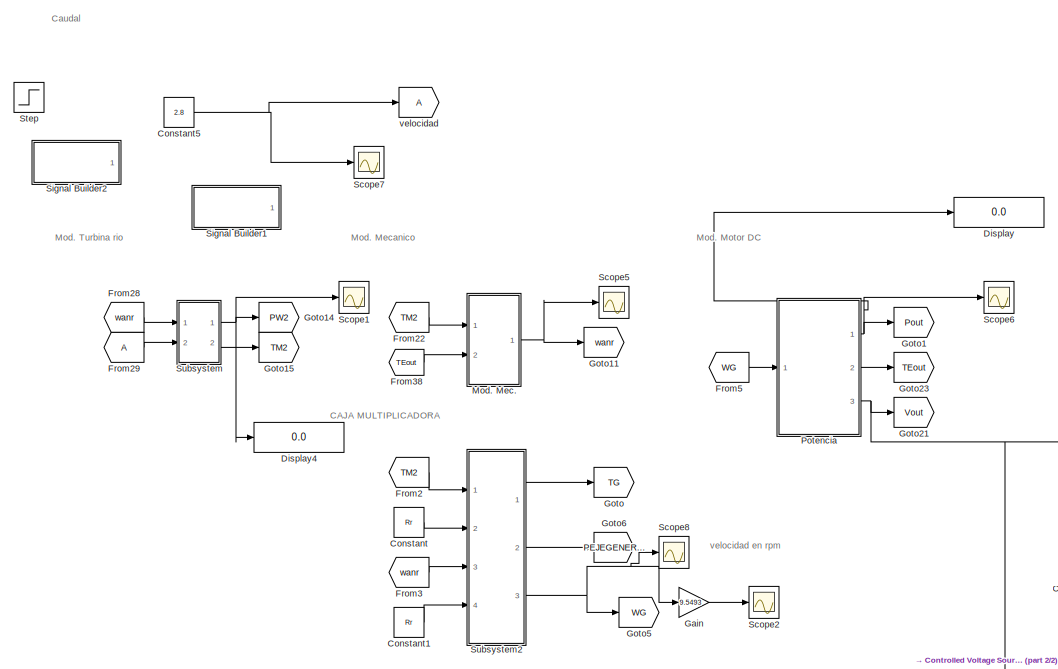
[diagram: root canvas - part 1/2, left side, full height]
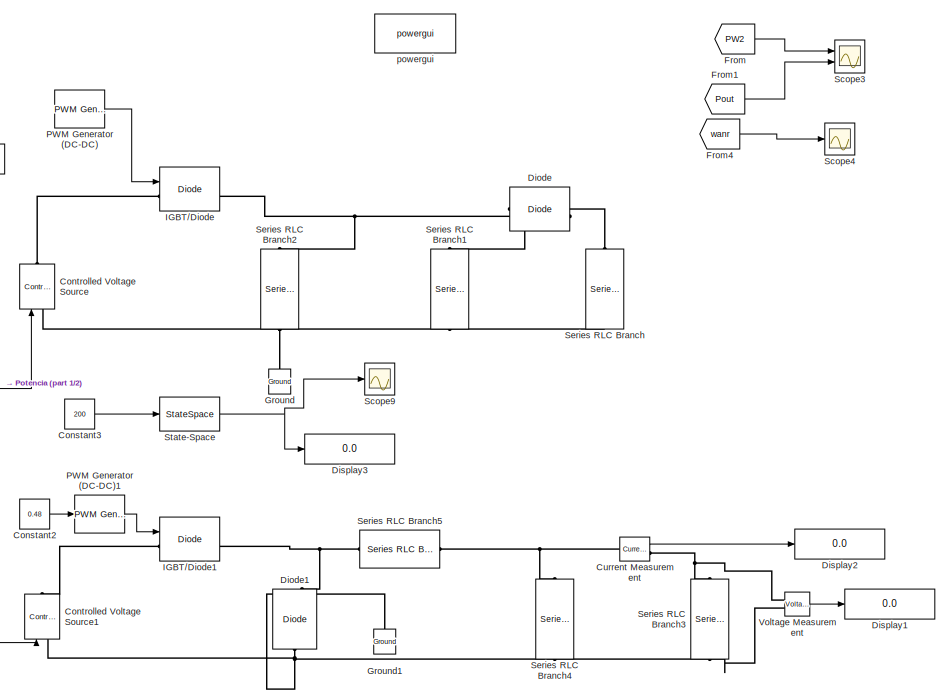
[diagram: root canvas - part 2/2, right side, full height]
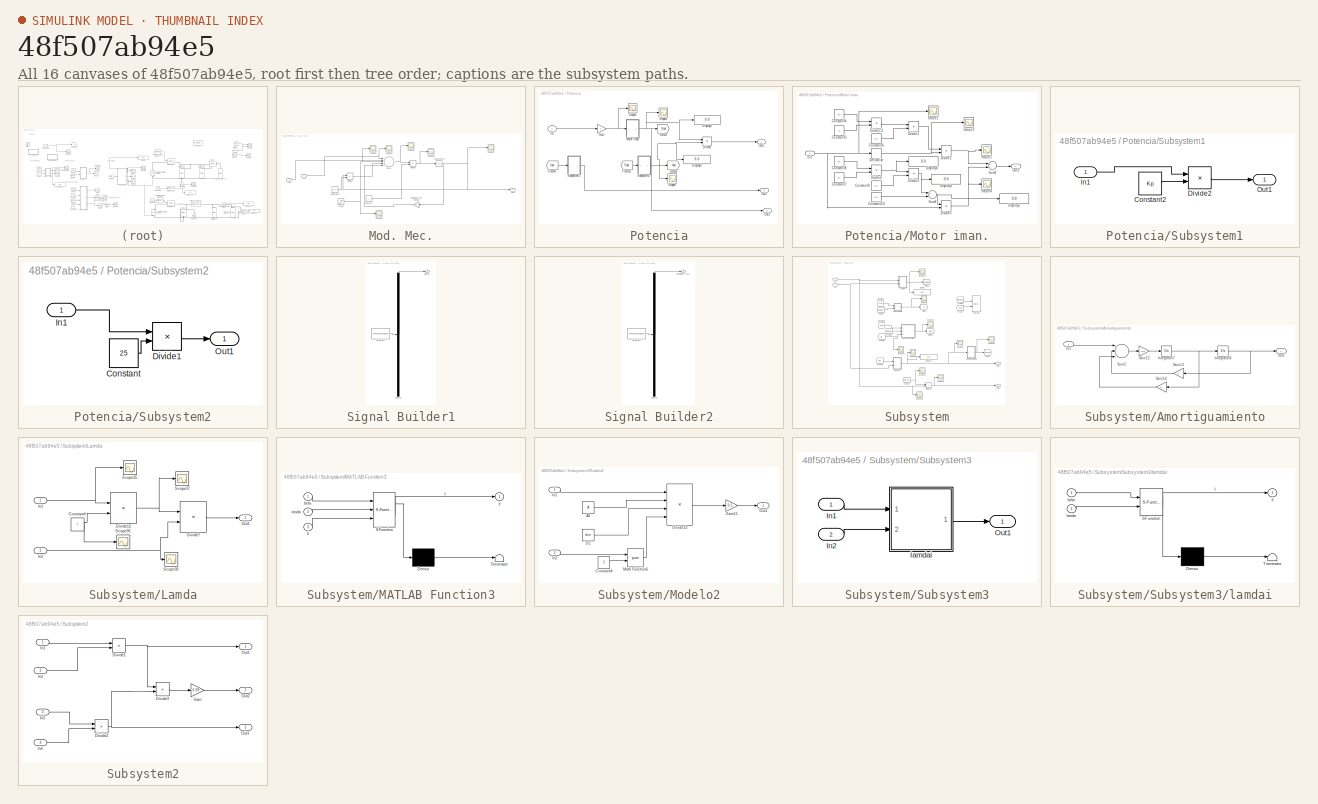
[diagram: thumbnail index - all 16 canvases of the model, root first then tree order]
MODEL slx_48f507ab94e5
KIND model
CONFIG AbsTol = auto
CONFIG EnableMultiTasking = off
CONFIG FixedStep = 50e-3
CONFIG MaxStep = auto
CONFIG MinStep = auto
CONFIG RelTol = 1e-3
CONFIG SampleTimeConstraint = Unconstrained
CONFIG Solver = ode1
CONFIG SolverName = ode1
CONFIG StartTime = 0.0
CONFIG StopTime = 4
BLOCK [Constant] Constant
  Value = Rr
BLOCK [Constant] Constant1
  Value = Rr
BLOCK [Constant] Constant2
  Commented = on
  Value = 0.48
BLOCK [Constant] Constant3
  Commented = on
  Value = 200
BLOCK [Constant] Constant5
  Value = 2.8
BLOCK [Reference] Controlled Voltage Source  REF=powerlib/Electrical
Sources/Controlled Voltage Source
  Commented = on
  Ports = [1, 0, 0, 0, 0, 1, 1]
  SourceBlock = powerlib/Electrical\nSources/Controlled Voltage Source
  SourceProductBaseCode = PS
  SourceProductName = Simscape Power Systems
  SourceType = Controlled Voltage Source
BLOCK [Reference] Controlled Voltage Source1  REF=powerlib/Electrical
Sources/Controlled Voltage Source
  Commented = on
  Ports = [1, 0, 0, 0, 0, 1, 1]
  SourceBlock = powerlib/Electrical\nSources/Controlled Voltage Source
  SourceProductBaseCode = PS
  SourceProductName = Simscape Power Systems
  SourceType = Controlled Voltage Source
BLOCK [Reference] Current Measurement  REF=powerlib/Measurements/Current Measurement
  Commented = on
  Ports = [0, 1, 0, 0, 0, 1, 1]
  SourceBlock = powerlib/Measurements/Current Measurement
  SourceProductBaseCode = PS
  SourceProductName = Simscape Power Systems
  SourceType = Current Measurement
  UserDataPersistent = on
BLOCK [Reference] Diode  REF=powerlib/Power
Electronics/Diode
  Commented = on
  Ports = [0, 1, 0, 0, 0, 1, 1]
  SourceBlock = powerlib/Power\nElectronics/Diode
  SourceProductBaseCode = PS
  SourceProductName = Simscape Power Systems
  SourceType = Diode
BLOCK [Reference] Diode1  REF=powerlib/Power
Electronics/Diode
  Commented = on
  Ports = [0, 1, 0, 0, 0, 1, 1]
  SourceBlock = powerlib/Power\nElectronics/Diode
  SourceProductBaseCode = PS
  SourceProductName = Simscape Power Systems
  SourceType = Diode
BLOCK [Display] Display
  Decimation = 1
  Ports = [1]
BLOCK [Display] Display1
  Commented = on
  Decimation = 1
  Ports = [1]
BLOCK [Display] Display2
  Commented = on
  Decimation = 1
  Ports = [1]
BLOCK [Display] Display3
  Commented = on
  Decimation = 1
  Ports = [1]
BLOCK [Display] Display4
  Decimation = 1
  Ports = [1]
BLOCK [From] From
  GotoTag = PW2
BLOCK [From] From1
  GotoTag = Pout
BLOCK [From] From2
  GotoTag = TM2
BLOCK [From] From22
  GotoTag = TM2
BLOCK [From] From28
  GotoTag = wanr
BLOCK [From] From29
BLOCK [From] From3
  GotoTag = wanr
BLOCK [From] From38
  GotoTag = TEout
BLOCK [From] From4
  GotoTag = wanr
BLOCK [From] From5
  GotoTag = WG
BLOCK [Gain] Gain
  Gain = 9.5493
  OutDataTypeStr = Inherit: Inherit via internal rule
  ParamDataTypeStr = Inherit: Inherit via internal rule
  SaturateOnIntegerOverflow = off
BLOCK [Goto] Goto
  GotoTag = TG
BLOCK [Goto] Goto1
  GotoTag = Pout
BLOCK [Goto] Goto11
  GotoTag = wanr
BLOCK [Goto] Goto14
  GotoTag = PW2
BLOCK [Goto] Goto15
  GotoTag = TM2
BLOCK [Goto] Goto21
  GotoTag = Vout
BLOCK [Goto] Goto23
  GotoTag = TEout
BLOCK [Goto] Goto5
  GotoTag = WG
BLOCK [Goto] Goto6
  GotoTag = PEJEGENERADOR
BLOCK [Reference] Ground  REF=powerlib/Elements/Ground
  Commented = on
  Ports = [0, 0, 0, 0, 0, 1]
  SourceBlock = powerlib/Elements/Ground
  SourceProductBaseCode = PS
  SourceProductName = Simscape Power Systems
  SourceType = Ground
BLOCK [Reference] Ground1  REF=powerlib/Elements/Ground
  Ports = [0, 0, 0, 0, 0, 1]
  SourceBlock = powerlib/Elements/Ground
  SourceProductBaseCode = PS
  SourceProductName = Simscape Power Systems
  SourceType = Ground
BLOCK [Reference] IGBT//Diode  REF=powerlib/Power
Electronics/IGBT//Diode
  Commented = on
  Ports = [1, 1, 0, 0, 0, 1, 1]
  SourceBlock = powerlib/Power\nElectronics/IGBT//Diode
  SourceProductBaseCode = PS
  SourceProductName = Simscape Power Systems
  SourceType = IGBT/Diode
BLOCK [Reference] IGBT//Diode1  REF=powerlib/Power
Electronics/IGBT//Diode
  Commented = on
  Ports = [1, 1, 0, 0, 0, 1, 1]
  SourceBlock = powerlib/Power\nElectronics/IGBT//Diode
  SourceProductBaseCode = PS
  SourceProductName = Simscape Power Systems
  SourceType = IGBT/Diode
BLOCK [SubSystem] Mod. Mec.
  Ports = [2, 1]
  RequestExecContextInheritance = off
  Variant = off
BLOCK [Constant] Mod. Mec./Constant3
  Value = T_d
BLOCK [Product] Mod. Mec./Divide2
  InputSameDT = off
  Inputs = **
  OutDataTypeStr = Inherit: Inherit via internal rule
  Ports = [2, 1]
  RndMeth = Floor
  SaturateOnIntegerOverflow = off
BLOCK [Product] Mod. Mec./Divide9
  InputSameDT = off
  Inputs = */
  OutDataTypeStr = Inherit: Inherit via internal rule
  Ports = [2, 1]
  RndMeth = Floor
  SaturateOnIntegerOverflow = off
BLOCK [Inport] Mod. Mec./In1
  IconDisplay = Port number
BLOCK [Inport] Mod. Mec./In2
  IconDisplay = Port number
  Port = 2
BLOCK [Integrator] Mod. Mec./Integrator6
  InitialCondition = 10
  Ports = [1, 1]
BLOCK [Gain] Mod. Mec./Oeficiente de friccion
  Gain = B
  OutDataTypeStr = Inherit: Inherit via internal rule
  ParamDataTypeStr = Inherit: Inherit via internal rule
  SaturateOnIntegerOverflow = off
BLOCK [Outport] Mod. Mec./Out1
  IconDisplay = Port number
BLOCK [Scope] Mod. Mec./Scope2
  NumInputPorts = 1
  Ports = [1]
  ScopeSpecificationString = Simulink.scopes.TimeScopeBlockCfg('CurrentConfiguration', extmgr.ConfigurationSet(extmgr.Configuration('Core','General UI',true),extmgr.Configuration('Core','Source UI',true),extmgr.Configuration('Sources','WiredSimulink',true,'DataLoggingVariableName','ScopeData3'),extmgr.Configuration('Visuals','Time Domain',true,'SerializedDisplays',{struct('MinYLimReal','0.16062','MaxYLimReal','5.41215','YLabe...<+1385ch>
BLOCK [Scope] Mod. Mec./Scope27
  NumInputPorts = 1
  Ports = [1]
  ScopeSpecificationString = Simulink.scopes.TimeScopeBlockCfg('CurrentConfiguration', extmgr.ConfigurationSet(extmgr.Configuration('Core','General UI',true,'FigureColor',[1 1 1]),extmgr.Configuration('Core','Source UI',true),extmgr.Configuration('Sources','WiredSimulink',true,'DataLoggingVariableName','ScopeData11'),extmgr.Configuration('Visuals','Time Domain',true,'SerializedDisplays',{struct('MinYLimReal','2.92579','MaxYLi...<+1567ch>
BLOCK [Scope] Mod. Mec./Scope28
  NumInputPorts = 1
  Ports = [1]
  ScopeSpecificationString = Simulink.scopes.TimeScopeBlockCfg('CurrentConfiguration', extmgr.ConfigurationSet(extmgr.Configuration('Core','General UI',true),extmgr.Configuration('Core','Source UI',true),extmgr.Configuration('Sources','WiredSimulink',true,'DataLoggingVariableName','ScopeData12'),extmgr.Configuration('Visuals','Time Domain',true,'SerializedDisplays',{struct('MinYLimReal','-4.64221','MaxYLimReal','51.65828','YL...<+1393ch>
BLOCK [Scope] Mod. Mec./Scope29
  NumInputPorts = 1
  Ports = [1]
  ScopeSpecificationString = Simulink.scopes.TimeScopeBlockCfg('CurrentConfiguration', extmgr.ConfigurationSet(extmgr.Configuration('Core','General UI',true),extmgr.Configuration('Core','Source UI',true),extmgr.Configuration('Sources','WiredSimulink',true,'DataLoggingVariableName','ScopeData13'),extmgr.Configuration('Visuals','Time Domain',true,'SerializedDisplays',{struct('MinYLimReal','-29.27017','MaxYLimReal','66.19135','Y...<+1423ch>
BLOCK [Scope] Mod. Mec./Scope30
  NumInputPorts = 1
  Ports = [1]
  ScopeSpecificationString = Simulink.scopes.TimeScopeBlockCfg('CurrentConfiguration', extmgr.ConfigurationSet(extmgr.Configuration('Core','General UI',true),extmgr.Configuration('Core','Source UI',true),extmgr.Configuration('Sources','WiredSimulink',true,'DataLoggingVariableName','ScopeData14'),extmgr.Configuration('Visuals','Time Domain',true,'SerializedDisplays',{struct('MinYLimReal','-0.09284','MaxYLimReal','1.03317','YLa...<+1392ch>
BLOCK [Scope] Mod. Mec./Scope39
  NumInputPorts = 1
  Ports = [1]
  ScopeSpecificationString = Simulink.scopes.TimeScopeBlockCfg('CurrentConfiguration', extmgr.ConfigurationSet(extmgr.Configuration('Core','General UI',true),extmgr.Configuration('Core','Source UI',true),extmgr.Configuration('Sources','WiredSimulink',true,'DataLoggingVariableName','ScopeData7'),extmgr.Configuration('Visuals','Time Domain',true,'SerializedDisplays',{struct('MinYLimReal','-0.625','MaxYLimReal','5.625','YLabelRe...<+1406ch>
BLOCK [Step] Mod. Mec./Step1
  After = 0
  Before = 5
  SampleTime = 0
  Time = 3
BLOCK [Sum] Mod. Mec./Sum4
  InputSameDT = off
  Inputs = |+-+--
  OutDataTypeStr = Inherit: Inherit via internal rule
  Ports = [5, 1]
  SaturateOnIntegerOverflow = off
BLOCK [Constant] Mod. Mec./inercia J
  Value = J
BLOCK [Reference] PWM Generator (DC-DC)  REF=powerlib_meascontrol/Pulse & Signal
Generators/PWM Generator
(DC-DC)
  Commented = on
  Ports = [1, 1]
  SourceBlock = powerlib_meascontrol/Pulse & Signal\nGenerators/PWM Generator\n(DC-DC)
  SourceProductBaseCode = PS
  SourceProductName = Simscape Power Systems
  SourceType = PWM Generator (DC-DC)
BLOCK [Reference] PWM Generator (DC-DC)1  REF=powerlib_meascontrol/Pulse & Signal
Generators/PWM Generator
(DC-DC)
  Commented = on
  Ports = [1, 1]
  SourceBlock = powerlib_meascontrol/Pulse & Signal\nGenerators/PWM Generator\n(DC-DC)
  SourceProductBaseCode = PS
  SourceProductName = Simscape Power Systems
  SourceType = PWM Generator (DC-DC)
BLOCK [SubSystem] Potencia
  Ports = [1, 3]
  RequestExecContextInheritance = off
  Variant = off
BLOCK [Display] Potencia/Display2
  Decimation = 1
  Ports = [1]
BLOCK [Display] Potencia/Display3
  Decimation = 1
  Ports = [1]
BLOCK [Product] Potencia/Divide1
  InputSameDT = off
  Inputs = **
  OutDataTypeStr = Inherit: Inherit via internal rule
  Ports = [2, 1]
  RndMeth = Floor
  SaturateOnIntegerOverflow = off
BLOCK [From] Potencia/From10
  GotoTag = Vout
BLOCK [From] Potencia/From47
  GotoTag = Iout
BLOCK [Gain] Potencia/Gain
  OutDataTypeStr = Inherit: Inherit via internal rule
  ParamDataTypeStr = Inherit: Inherit via internal rule
  SaturateOnIntegerOverflow = off
BLOCK [Goto] Potencia/Goto21
  GotoTag = Vout
BLOCK [Goto] Potencia/Goto22
  GotoTag = Iout
BLOCK [Inport] Potencia/In1
  IconDisplay = Port number
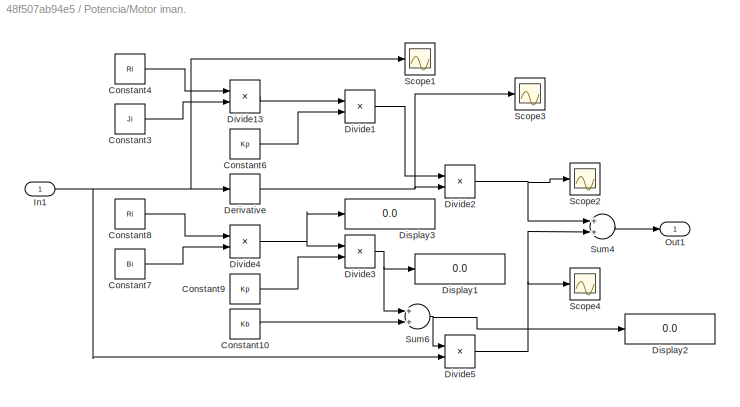
BLOCK [SubSystem] Potencia/Motor iman.
  Ports = [1, 1]
  RequestExecContextInheritance = off
  Variant = off
BLOCK [Constant] Potencia/Motor iman./Constant10
  Value = Kb
BLOCK [Constant] Potencia/Motor iman./Constant3
  Value = Ji
BLOCK [Constant] Potencia/Motor iman./Constant4
  Value = Ri
BLOCK [Constant] Potencia/Motor iman./Constant6
  Value = Kp
BLOCK [Constant] Potencia/Motor iman./Constant7
  Value = Bi
BLOCK [Constant] Potencia/Motor iman./Constant8
  Value = Ri
BLOCK [Constant] Potencia/Motor iman./Constant9
  Value = Kp
BLOCK [Derivative] Potencia/Motor iman./Derivative
BLOCK [Display] Potencia/Motor iman./Display1
  Decimation = 1
  Ports = [1]
BLOCK [Display] Potencia/Motor iman./Display2
  Decimation = 1
  Ports = [1]
BLOCK [Display] Potencia/Motor iman./Display3
  Decimation = 1
  Ports = [1]
BLOCK [Product] Potencia/Motor iman./Divide1
  InputSameDT = off
  Inputs = */
  OutDataTypeStr = Inherit: Inherit via internal rule
  Ports = [2, 1]
BLOCK [Product] Potencia/Motor iman./Divide13
  InputSameDT = off
  Inputs = **
  OutDataTypeStr = Inherit: Inherit via internal rule
  Ports = [2, 1]
BLOCK [Product] Potencia/Motor iman./Divide2
  InputSameDT = off
  Inputs = **
  OutDataTypeStr = Inherit: Inherit via internal rule
  Ports = [2, 1]
BLOCK [Product] Potencia/Motor iman./Divide3
  InputSameDT = off
  Inputs = */
  OutDataTypeStr = Inherit: Inherit via internal rule
  Ports = [2, 1]
BLOCK [Product] Potencia/Motor iman./Divide4
  InputSameDT = off
  Inputs = **
  OutDataTypeStr = Inherit: Inherit via internal rule
  Ports = [2, 1]
BLOCK [Product] Potencia/Motor iman./Divide5
  InputSameDT = off
  Inputs = **
  OutDataTypeStr = Inherit: Inherit via internal rule
  Ports = [2, 1]
BLOCK [Inport] Potencia/Motor iman./In1
  IconDisplay = Port number
BLOCK [Outport] Potencia/Motor iman./Out1
  IconDisplay = Port number
BLOCK [Scope] Potencia/Motor iman./Scope1
  NumInputPorts = 1
  Ports = [1]
  ScopeSpecificationString = Simulink.scopes.TimeScopeBlockCfg('CurrentConfiguration', extmgr.ConfigurationSet(extmgr.Configuration('Core','General UI',true),extmgr.Configuration('Core','Source UI',true),extmgr.Configuration('Sources','WiredSimulink',true,'DataLoggingVariableName','ScopeData5'),extmgr.Configuration('Visuals','Time Domain',true,'SerializedDisplays',{struct('MinYLimReal','6.7756','MaxYLimReal','219.01959','YLab...<+1364ch>
BLOCK [Scope] Potencia/Motor iman./Scope2
  NumInputPorts = 1
  Ports = [1]
  ScopeSpecificationString = Simulink.scopes.TimeScopeBlockCfg('CurrentConfiguration', extmgr.ConfigurationSet(extmgr.Configuration('Core','General UI',true),extmgr.Configuration('Core','Source UI',true),extmgr.Configuration('Sources','WiredSimulink',true,'DataLoggingVariableName','ScopeData1'),extmgr.Configuration('Visuals','Time Domain',true,'SerializedDisplays',{struct('MinYLimReal','-12.35492','MaxYLimReal','26.83381','YL...<+1372ch>
BLOCK [Scope] Potencia/Motor iman./Scope3
  NumInputPorts = 1
  Ports = [1]
  ScopeSpecificationString = Simulink.scopes.TimeScopeBlockCfg('CurrentConfiguration', extmgr.ConfigurationSet(extmgr.Configuration('Core','General UI',true),extmgr.Configuration('Core','Source UI',true),extmgr.Configuration('Sources','WiredSimulink',true,'DataLoggingVariableName','ScopeData4'),extmgr.Configuration('Visuals','Time Domain',true,'SerializedDisplays',{struct('MinYLimReal','-6.08322','MaxYLimReal','13.06326','YLa...<+1373ch>
BLOCK [Scope] Potencia/Motor iman./Scope4
  NumInputPorts = 1
  Ports = [1]
  ScopeSpecificationString = Simulink.scopes.TimeScopeBlockCfg('CurrentConfiguration', extmgr.ConfigurationSet(extmgr.Configuration('Core','General UI',true),extmgr.Configuration('Core','Source UI',true),extmgr.Configuration('Sources','WiredSimulink',true,'DataLoggingVariableName','ScopeData2'),extmgr.Configuration('Visuals','Time Domain',true,'SerializedDisplays',{struct('MinYLimReal','14.52045','MaxYLimReal','469.36993','YL...<+1376ch>
BLOCK [Sum] Potencia/Motor iman./Sum4
  InputSameDT = off
  OutDataTypeStr = Inherit: Inherit via internal rule
  Ports = [2, 1]
  SaturateOnIntegerOverflow = off
BLOCK [Sum] Potencia/Motor iman./Sum6
  InputSameDT = off
  OutDataTypeStr = Inherit: Inherit via internal rule
  Ports = [2, 1]
  SaturateOnIntegerOverflow = off
BLOCK [Outport] Potencia/Out1
  IconDisplay = Port number
BLOCK [Outport] Potencia/Out2
  IconDisplay = Port number
  Port = 2
BLOCK [Outport] Potencia/Out3
  IconDisplay = Port number
  Port = 3
BLOCK [Scope] Potencia/Scope1
  NumInputPorts = 1
  Ports = [1]
  ScopeSpecificationString = Simulink.scopes.TimeScopeBlockCfg('CurrentConfiguration', extmgr.ConfigurationSet(extmgr.Configuration('Core','General UI',true),extmgr.Configuration('Core','Source UI',true),extmgr.Configuration('Sources','WiredSimulink',true,'DataLoggingVariableName','ScopeData1'),extmgr.Configuration('Visuals','Time Domain',true,'SerializedDisplays',{struct('MinYLimReal','0.63338','MaxYLimReal','422.90957','YLa...<+1376ch>
BLOCK [Scope] Potencia/Scope3
  NumInputPorts = 1
  Ports = [1]
  ScopeSpecificationString = Simulink.scopes.TimeScopeBlockCfg('CurrentConfiguration', extmgr.ConfigurationSet(extmgr.Configuration('Core','General UI',true),extmgr.Configuration('Core','Source UI',true),extmgr.Configuration('Sources','WiredSimulink',true,'DataLoggingVariableName','ScopeData2'),extmgr.Configuration('Visuals','Time Domain',true,'SerializedDisplays',{struct('MinYLimReal','5.04136','MaxYLimReal','154.62776','YLa...<+1369ch>
BLOCK [Scope] Potencia/Scope6
  NumInputPorts = 1
  Ports = [1]
  ScopeSpecificationString = Simulink.scopes.TimeScopeBlockCfg('CurrentConfiguration', extmgr.ConfigurationSet(extmgr.Configuration('Core','General UI',true),extmgr.Configuration('Core','Source UI',true),extmgr.Configuration('Sources','WiredSimulink',true,'DataLoggingVariableName','ScopeData2'),extmgr.Configuration('Visuals','Time Domain',true,'SerializedDisplays',{struct('MinYLimReal','0.28611','MaxYLimReal','9.4261','YLabel...<+1363ch>
BLOCK [SubSystem] Potencia/Subsystem1
  Ports = [1, 1]
  RequestExecContextInheritance = off
  Variant = off
BLOCK [Constant] Potencia/Subsystem1/Constant2
  Value = Kp
BLOCK [Product] Potencia/Subsystem1/Divide2
  InputSameDT = off
  Inputs = **
  OutDataTypeStr = Inherit: Inherit via internal rule
  Ports = [2, 1]
  RndMeth = Floor
  SaturateOnIntegerOverflow = off
BLOCK [Inport] Potencia/Subsystem1/In1
  IconDisplay = Port number
BLOCK [Outport] Potencia/Subsystem1/Out1
  IconDisplay = Port number
BLOCK [SubSystem] Potencia/Subsystem2
  Ports = [1, 1]
  RequestExecContextInheritance = off
  Variant = off
BLOCK [Constant] Potencia/Subsystem2/Constant
  Value = 25
BLOCK [Product] Potencia/Subsystem2/Divide1
  InputSameDT = off
  Inputs = */
  OutDataTypeStr = Inherit: Inherit via internal rule
  Ports = [2, 1]
  RndMeth = Floor
  SaturateOnIntegerOverflow = off
BLOCK [Inport] Potencia/Subsystem2/In1
  IconDisplay = Port number
BLOCK [Outport] Potencia/Subsystem2/Out1
  IconDisplay = Port number
BLOCK [Scope] Scope1
  NumInputPorts = 1
  Ports = [1]
  ScopeSpecificationString = Simulink.scopes.TimeScopeBlockCfg('CurrentConfiguration', extmgr.ConfigurationSet(extmgr.Configuration('Core','General UI',true),extmgr.Configuration('Core','Source UI',true),extmgr.Configuration('Sources','WiredSimulink',true,'DataLoggingVariableName','ScopeData4'),extmgr.Configuration('Visuals','Time Domain',true,'SerializedDisplays',{struct('MinYLimReal','-10109.99976','MaxYLimReal','5720.47472...<+1469ch>
BLOCK [Scope] Scope2
  NumInputPorts = 1
  Ports = [1]
  ScopeSpecificationString = Simulink.scopes.TimeScopeBlockCfg('CurrentConfiguration', extmgr.ConfigurationSet(extmgr.Configuration('Core','General UI',true),extmgr.Configuration('Core','Source UI',true),extmgr.Configuration('Sources','WiredSimulink',true,'DataLoggingVariableName','ScopeData1'),extmgr.Configuration('Visuals','Time Domain',true,'SerializedDisplays',{struct('MinYLimReal','56.8602','MaxYLimReal','1398.11817','YL...<+1473ch>
BLOCK [Scope] Scope3
  NumInputPorts = 2
  Ports = [2]
  ScopeSpecificationString = Simulink.scopes.TimeScopeBlockCfg('CurrentConfiguration', extmgr.ConfigurationSet(extmgr.Configuration('Core','General UI',true),extmgr.Configuration('Core','Source UI',true),extmgr.Configuration('Sources','WiredSimulink',true,'DataLoggingVariableName','ScopeData1'),extmgr.Configuration('Visuals','Time Domain',true,'SerializedDisplays',{struct('MinYLimReal','-410.96038','MaxYLimReal','4433.46951',...<+1501ch>
BLOCK [Scope] Scope4
  NumInputPorts = 1
  Ports = [1]
  ScopeSpecificationString = Simulink.scopes.TimeScopeBlockCfg('CurrentConfiguration', extmgr.ConfigurationSet(extmgr.Configuration('Core','General UI',true,'FigureColor',[1 1 1]),extmgr.Configuration('Core','Source UI',true),extmgr.Configuration('Sources','WiredSimulink',true,'DataLoggingVariableName','ScopeData2'),extmgr.Configuration('Visuals','Time Domain',true,'SerializedDisplays',{struct('MinYLimReal','2.35531','MaxYLim...<+1559ch>
BLOCK [Scope] Scope5
  NumInputPorts = 1
  Ports = [1]
  ScopeSpecificationString = Simulink.scopes.TimeScopeBlockCfg('CurrentConfiguration', extmgr.ConfigurationSet(extmgr.Configuration('Core','General UI',true),extmgr.Configuration('Core','Source UI',true),extmgr.Configuration('Sources','WiredSimulink',true,'DataLoggingVariableName','ScopeData5'),extmgr.Configuration('Visuals','Time Domain',true,'SerializedDisplays',{struct('MinYLimReal','2.52068','MaxYLimReal','77.31388','YLab...<+1370ch>
BLOCK [Scope] Scope6
  NumInputPorts = 1
  Ports = [1]
  ScopeSpecificationString = Simulink.scopes.TimeScopeBlockCfg('CurrentConfiguration', extmgr.ConfigurationSet(extmgr.Configuration('Core','General UI',true,'FigureColor',[1 1 1]),extmgr.Configuration('Core','Source UI',true),extmgr.Configuration('Sources','WiredSimulink',true,'DataLoggingVariableName','ScopeData3'),extmgr.Configuration('Visuals','Time Domain',true,'SerializedDisplays',{struct('MinYLimReal','-641.92579','MaxY...<+1578ch>
BLOCK [Scope] Scope7
  NumInputPorts = 1
  Ports = [1]
  ScopeSpecificationString = Simulink.scopes.TimeScopeBlockCfg('CurrentConfiguration', extmgr.ConfigurationSet(extmgr.Configuration('Core','General UI',true,'FigureColor',[1 1 1]),extmgr.Configuration('Core','Source UI',true),extmgr.Configuration('Sources','WiredSimulink',true,'DataLoggingVariableName','ScopeData6'),extmgr.Configuration('Visuals','Time Domain',true,'TimeAxisLabels','All','SerializedDisplays',{struct('MinYLimR...<+1548ch>
BLOCK [Scope] Scope8
  NumInputPorts = 1
  Ports = [1]
  ScopeSpecificationString = Simulink.scopes.TimeScopeBlockCfg('CurrentConfiguration', extmgr.ConfigurationSet(extmgr.Configuration('Core','General UI',true,'FigureColor',[1 1 1]),extmgr.Configuration('Core','Source UI',true),extmgr.Configuration('Sources','WiredSimulink',true,'DataLoggingVariableName','ScopeData7'),extmgr.Configuration('Visuals','Time Domain',true,'SerializedDisplays',{struct('MinYLimReal','4.71062','MaxYLim...<+1537ch>
BLOCK [Scope] Scope9
  Commented = on
  NumInputPorts = 1
  Ports = [1]
  ScopeSpecificationString = Simulink.scopes.TimeScopeBlockCfg('CurrentConfiguration', extmgr.ConfigurationSet(extmgr.Configuration('Core','General UI',true,'FigureColor',[1 1 1]),extmgr.Configuration('Core','Source UI',true),extmgr.Configuration('Sources','WiredSimulink',true,'DataLoggingVariableName','ScopeData1'),extmgr.Configuration('Visuals','Time Domain',true,'SerializedDisplays',{struct('MinYLimReal','-1079182159210319...<+3961ch>
BLOCK [Reference] Series RLC Branch  REF=powerlib/Elements/Series RLC Branch
  Commented = on
  Ports = [0, 0, 0, 0, 0, 1, 1]
  SourceBlock = powerlib/Elements/Series RLC Branch
  SourceProductBaseCode = PS
  SourceProductName = Simscape Power Systems
  SourceType = Series RLC Branch
BLOCK [Reference] Series RLC Branch1  REF=powerlib/Elements/Series RLC Branch
  Commented = on
  Ports = [0, 0, 0, 0, 0, 1, 1]
  SourceBlock = powerlib/Elements/Series RLC Branch
  SourceProductBaseCode = PS
  SourceProductName = Simscape Power Systems
  SourceType = Series RLC Branch
BLOCK [Reference] Series RLC Branch2  REF=powerlib/Elements/Series RLC Branch
  Commented = on
  Ports = [0, 0, 0, 0, 0, 1, 1]
  SourceBlock = powerlib/Elements/Series RLC Branch
  SourceProductBaseCode = PS
  SourceProductName = Simscape Power Systems
  SourceType = Series RLC Branch
BLOCK [Reference] Series RLC Branch3  REF=powerlib/Elements/Series RLC Branch
  Commented = on
  Ports = [0, 0, 0, 0, 0, 1, 1]
  SourceBlock = powerlib/Elements/Series RLC Branch
  SourceProductBaseCode = PS
  SourceProductName = Simscape Power Systems
  SourceType = Series RLC Branch
BLOCK [Reference] Series RLC Branch4  REF=powerlib/Elements/Series RLC Branch
  Commented = on
  Ports = [0, 0, 0, 0, 0, 1, 1]
  SourceBlock = powerlib/Elements/Series RLC Branch
  SourceProductBaseCode = PS
  SourceProductName = Simscape Power Systems
  SourceType = Series RLC Branch
BLOCK [Reference] Series RLC Branch5  REF=powerlib/Elements/Series RLC Branch
  Commented = on
  Ports = [0, 0, 0, 0, 0, 1, 1]
  SourceBlock = powerlib/Elements/Series RLC Branch
  SourceProductBaseCode = PS
  SourceProductName = Simscape Power Systems
  SourceType = Series RLC Branch
BLOCK [SubSystem] Signal Builder1
  ClipboardFcn = sigbuilder_block('clipboard');
  CloseFcn = sigbuilder_block('close');
  ContinueFcn = sigbuilder_block('continue');
  CopyFcn = sigbuilder_block('copy');
  DeleteFcn = sigbuilder_block('delete');
  LoadFcn = sigbuilder_block('load');
  MaskHideContents = on
  ModelCloseFcn = sigbuilder_block('modelClose');
  NameChangeFcn = sigbuilder_block('namechange');
  OpenFcn = sigbuilder_block('open',[211.5 75 550.5 359.25 ]);
  PauseFcn = sigbuilder_block('pause');
  Ports = [0, 1]
  PreSaveFcn = sigbuilder_block('preSave');
  RequestExecContextInheritance = off
  StartFcn = sigbuilder_block('start');
  StopFcn = sigbuilder_block('stop');
  Tag = STV Subsys
  Variant = off
BLOCK [Demux] Signal Builder1/Demux
  Outputs = 1
  Ports = [1, 1]
  Tag = STV Demux
BLOCK [FromWorkspace] Signal Builder1/FromWs
  SampleTime = 0
  Tag = STV FromWs
  VariableName = tuvar
  ZeroCross = on
BLOCK [Outport] Signal Builder1/Signal 1
  IconDisplay = Port number
  Tag = STV Outport
BLOCK [SubSystem] Signal Builder2
  ClipboardFcn = sigbuilder_block('clipboard');
  CloseFcn = sigbuilder_block('close');
  ContinueFcn = sigbuilder_block('continue');
  CopyFcn = sigbuilder_block('copy');
  DeleteFcn = sigbuilder_block('delete');
  LoadFcn = sigbuilder_block('load');
  MaskHideContents = on
  ModelCloseFcn = sigbuilder_block('modelClose');
  NameChangeFcn = sigbuilder_block('namechange');
  OpenFcn = sigbuilder_block('open',[197.25 66 550.5 359.25 ]);
  PauseFcn = sigbuilder_block('pause');
  Ports = [0, 1]
  PreSaveFcn = sigbuilder_block('preSave');
  RequestExecContextInheritance = off
  StartFcn = sigbuilder_block('start');
  StopFcn = sigbuilder_block('stop');
  Tag = STV Subsys
  Variant = off
BLOCK [Demux] Signal Builder2/Demux
  Outputs = 1
  Ports = [1, 1]
  Tag = STV Demux
BLOCK [FromWorkspace] Signal Builder2/FromWs
  SampleTime = 0
  Tag = STV FromWs
  VariableName = tuvar
  ZeroCross = on
BLOCK [Outport] Signal Builder2/Velocidad (m//s)
  IconDisplay = Port number
  Tag = STV Outport
BLOCK [StateSpace] State-Space
  A = [0 (-1/LDC);(1/CDC) -(1/(RDC*CDC))]
  B = [(DDC/LDC);0]
  C = [0 1]
  Commented = through
  D = 0
  Ports = [1, 1]
  X0 = 0
BLOCK [Step] Step
  After = 2.888
  Before = 2.5
  SampleTime = 0
  Time = 10
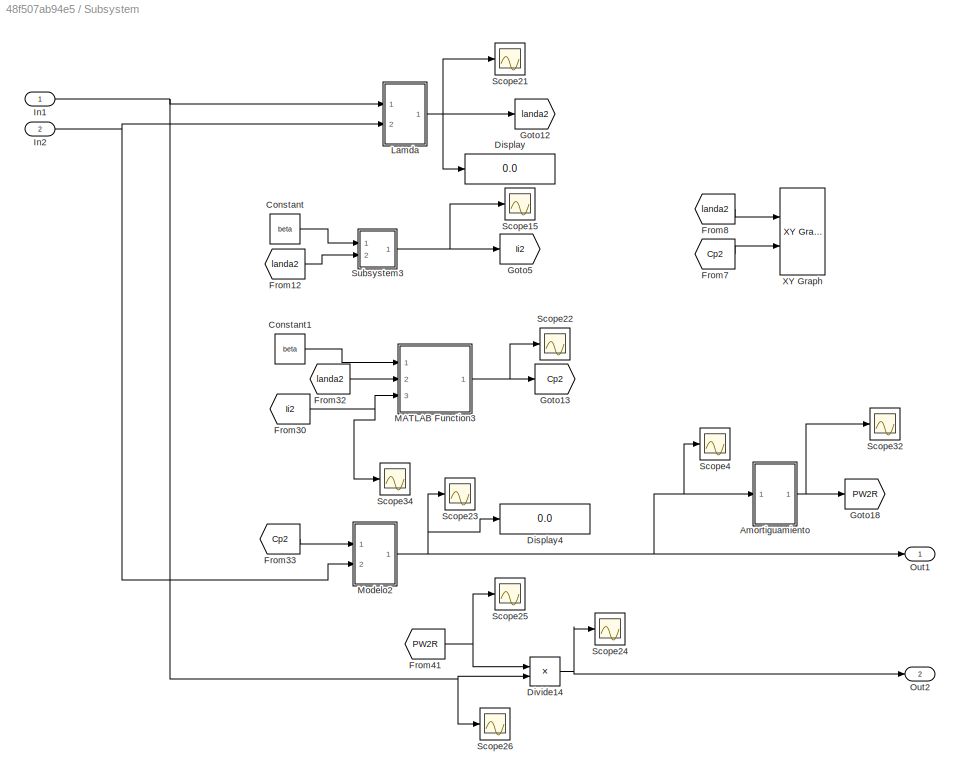
BLOCK [SubSystem] Subsystem
  Ports = [2, 2]
  RequestExecContextInheritance = off
  Variant = off
BLOCK [SubSystem] Subsystem/Amortiguamiento
  Ports = [1, 1]
  RequestExecContextInheritance = off
  Variant = off
BLOCK [Gain] Subsystem/Amortiguamiento/Gain12
  Gain = 1/m
  OutDataTypeStr = Inherit: Inherit via internal rule
  ParamDataTypeStr = Inherit: Inherit via internal rule
  SaturateOnIntegerOverflow = off
BLOCK [Gain] Subsystem/Amortiguamiento/Gain13
  Gain = k
  OutDataTypeStr = Inherit: Inherit via internal rule
  ParamDataTypeStr = Inherit: Inherit via internal rule
  SaturateOnIntegerOverflow = off
BLOCK [Gain] Subsystem/Amortiguamiento/Gain14
  Gain = z
  OutDataTypeStr = Inherit: Inherit via internal rule
  ParamDataTypeStr = Inherit: Inherit via internal rule
  SaturateOnIntegerOverflow = off
BLOCK [Inport] Subsystem/Amortiguamiento/In1
  IconDisplay = Port number
BLOCK [Integrator] Subsystem/Amortiguamiento/Integrator7
  Ports = [1, 1]
BLOCK [Integrator] Subsystem/Amortiguamiento/Integrator8
  Ports = [1, 1]
BLOCK [Outport] Subsystem/Amortiguamiento/Out1
  IconDisplay = Port number
BLOCK [Sum] Subsystem/Amortiguamiento/Sum5
  InputSameDT = off
  Inputs = +--
  OutDataTypeStr = Inherit: Inherit via internal rule
  Ports = [3, 1]
  SaturateOnIntegerOverflow = off
BLOCK [Constant] Subsystem/Constant
  Value = beta
BLOCK [Constant] Subsystem/Constant1
  Value = beta
BLOCK [Display] Subsystem/Display
  Decimation = 1
  Ports = [1]
BLOCK [Display] Subsystem/Display4
  Decimation = 1
  Ports = [1]
BLOCK [Product] Subsystem/Divide14
  InputSameDT = off
  Inputs = */
  OutDataTypeStr = Inherit: Inherit via internal rule
  Ports = [2, 1]
  RndMeth = Floor
  SaturateOnIntegerOverflow = off
BLOCK [From] Subsystem/From12
  GotoTag = landa2
BLOCK [From] Subsystem/From30
  GotoTag = Ii2
BLOCK [From] Subsystem/From32
  GotoTag = landa2
BLOCK [From] Subsystem/From33
  GotoTag = Cp2
BLOCK [From] Subsystem/From41
  GotoTag = PW2R
BLOCK [From] Subsystem/From7
  GotoTag = Cp2
BLOCK [From] Subsystem/From8
  GotoTag = landa2
BLOCK [Goto] Subsystem/Goto12
  GotoTag = landa2
BLOCK [Goto] Subsystem/Goto13
  GotoTag = Cp2
BLOCK [Goto] Subsystem/Goto18
  GotoTag = PW2R
BLOCK [Goto] Subsystem/Goto5
  GotoTag = Ii2
BLOCK [Inport] Subsystem/In1
  IconDisplay = Port number
BLOCK [Inport] Subsystem/In2
  IconDisplay = Port number
  Port = 2
BLOCK [SubSystem] Subsystem/Lamda
  Ports = [2, 1]
  RequestExecContextInheritance = off
  Variant = off
BLOCK [Constant] Subsystem/Lamda/Constant4
  Value = r
BLOCK [Product] Subsystem/Lamda/Divide12
  InputSameDT = off
  Inputs = **
  OutDataTypeStr = Inherit: Inherit via internal rule
  Ports = [2, 1]
  RndMeth = Floor
  SaturateOnIntegerOverflow = off
BLOCK [Product] Subsystem/Lamda/Divide7
  InputSameDT = off
  Inputs = */
  OutDataTypeStr = Inherit: Inherit via internal rule
  Ports = [2, 1]
  RndMeth = Floor
  SaturateOnIntegerOverflow = off
BLOCK [Inport] Subsystem/Lamda/In1
  IconDisplay = Port number
BLOCK [Inport] Subsystem/Lamda/In2
  IconDisplay = Port number
  Port = 2
BLOCK [Outport] Subsystem/Lamda/Out1
  IconDisplay = Port number
BLOCK [Scope] Subsystem/Lamda/Scope35
  NumInputPorts = 1
  Ports = [1]
  ScopeSpecificationString = Simulink.scopes.TimeScopeBlockCfg('CurrentConfiguration', extmgr.ConfigurationSet(extmgr.Configuration('Core','General UI',true),extmgr.Configuration('Core','Source UI',true),extmgr.Configuration('Sources','WiredSimulink',true,'DataLoggingVariableName','ScopeData3'),extmgr.Configuration('Visuals','Time Domain',true,'SerializedDisplays',{struct('MinYLimReal','5.6875','MaxYLimReal','48.8125','YLabel...<+1643ch>
BLOCK [Scope] Subsystem/Lamda/Scope36
  NumInputPorts = 1
  Ports = [1]
  ScopeSpecificationString = Simulink.scopes.TimeScopeBlockCfg('CurrentConfiguration', extmgr.ConfigurationSet(extmgr.Configuration('Core','General UI',true),extmgr.Configuration('Core','Source UI',true),extmgr.Configuration('Sources','WiredSimulink',true,'DataLoggingVariableName','ScopeData4'),extmgr.Configuration('Visuals','Time Domain',true,'SerializedDisplays',{struct('MinYLimReal','0.4','MaxYLimReal','0.6','YLabelReal','...<+1363ch>
BLOCK [Scope] Subsystem/Lamda/Scope37
  NumInputPorts = 1
  Ports = [1]
  ScopeSpecificationString = Simulink.scopes.TimeScopeBlockCfg('CurrentConfiguration', extmgr.ConfigurationSet(extmgr.Configuration('Core','General UI',true),extmgr.Configuration('Core','Source UI',true),extmgr.Configuration('Sources','WiredSimulink',true,'DataLoggingVariableName','ScopeData5'),extmgr.Configuration('Visuals','Time Domain',true,'SerializedDisplays',{struct('MinYLimReal','2.60111','MaxYLimReal','26.59001','YLab...<+1394ch>
BLOCK [Scope] Subsystem/Lamda/Scope38
  NumInputPorts = 1
  Ports = [1]
  ScopeSpecificationString = Simulink.scopes.TimeScopeBlockCfg('CurrentConfiguration', extmgr.ConfigurationSet(extmgr.Configuration('Core','General UI',true),extmgr.Configuration('Core','Source UI',true),extmgr.Configuration('Sources','WiredSimulink',true,'DataLoggingVariableName','ScopeData6'),extmgr.Configuration('Visuals','Time Domain',true,'SerializedDisplays',{struct('MinYLimReal','1.9','MaxYLimReal','2.9','YLabelReal','...<+1328ch>
BLOCK [SubSystem] Subsystem/MATLAB Function3
  ErrorFcn = Stateflow.Translate.translate
  PermitHierarchicalResolution = ExplicitOnly
  Ports = [3, 1]
  RequestExecContextInheritance = off
  SFBlockType = MATLAB Function
  TreatAsAtomicUnit = on
  Variant = off
BLOCK [Demux] Subsystem/MATLAB Function3/ Demux 
  Outputs = 1
  Ports = [1, 1]
BLOCK [S-Function] Subsystem/MATLAB Function3/ SFunction 
  EnableBusSupport = on
  FunctionName = sf_sfun
  PortCounts = [3 2]
  Ports = [3, 2]
  SFcnIsStateOwnerBlock = off
  SFunctionDeploymentMode = off
  Tag = Stateflow S-Function MODELODETURBINADERIOV4 2
BLOCK [Terminator] Subsystem/MATLAB Function3/ Terminator 
BLOCK [Inport] Subsystem/MATLAB Function3/Ii
  IconDisplay = Port number
  Port = 3
BLOCK [Inport] Subsystem/MATLAB Function3/beta
  IconDisplay = Port number
BLOCK [Inport] Subsystem/MATLAB Function3/landa
  IconDisplay = Port number
  Port = 2
BLOCK [Outport] Subsystem/MATLAB Function3/y
  IconDisplay = Port number
BLOCK [SubSystem] Subsystem/Modelo2
  Ports = [2, 1]
  RequestExecContextInheritance = off
  Variant = off
BLOCK [Constant] Subsystem/Modelo2/A1
  Value = A
BLOCK [Constant] Subsystem/Modelo2/Constant4
  Value = 3
BLOCK [Constant] Subsystem/Modelo2/D1
  Value = den
BLOCK [Product] Subsystem/Modelo2/Divide13
  InputSameDT = off
  Inputs = ****
  OutDataTypeStr = Inherit: Inherit via internal rule
  Ports = [4, 1]
BLOCK [Gain] Subsystem/Modelo2/Gain11
  Gain = 0.5
  OutDataTypeStr = Inherit: Inherit via internal rule
  ParamDataTypeStr = Inherit: Inherit via internal rule
  SaturateOnIntegerOverflow = off
BLOCK [Inport] Subsystem/Modelo2/In1
  IconDisplay = Port number
BLOCK [Inport] Subsystem/Modelo2/In2
  IconDisplay = Port number
  Port = 2
BLOCK [Math] Subsystem/Modelo2/Math Function6
  Operator = pow
  Ports = [2, 1]
BLOCK [Outport] Subsystem/Modelo2/Out1
  IconDisplay = Port number
BLOCK [Outport] Subsystem/Out1
  IconDisplay = Port number
BLOCK [Outport] Subsystem/Out2
  IconDisplay = Port number
  Port = 2
BLOCK [Scope] Subsystem/Scope15
  NumInputPorts = 1
  Ports = [1]
  ScopeSpecificationString = Simulink.scopes.TimeScopeBlockCfg('CurrentConfiguration', extmgr.ConfigurationSet(extmgr.Configuration('Core','General UI',true),extmgr.Configuration('Core','Source UI',true),extmgr.Configuration('Sources','WiredSimulink',true,'DataLoggingVariableName','ScopeData2'),extmgr.Configuration('Visuals','Time Domain',true,'SerializedDisplays',{struct('MinYLimReal','-0.62327','MaxYLimReal','24.65706','YLa...<+1402ch>
BLOCK [Scope] Subsystem/Scope21
  NumInputPorts = 1
  Ports = [1]
  ScopeSpecificationString = Simulink.scopes.TimeScopeBlockCfg('CurrentConfiguration', extmgr.ConfigurationSet(extmgr.Configuration('Core','General UI',true),extmgr.Configuration('Core','Source UI',true),extmgr.Configuration('Sources','WiredSimulink',true,'DataLoggingVariableName','ScopeData5'),extmgr.Configuration('Visuals','Time Domain',true,'SerializedDisplays',{struct('MinYLimReal','-0.41206','MaxYLimReal','21.56565','YLa...<+1412ch>
BLOCK [Scope] Subsystem/Scope22
  NumInputPorts = 1
  Ports = [1]
  ScopeSpecificationString = Simulink.scopes.TimeScopeBlockCfg('CurrentConfiguration', extmgr.ConfigurationSet(extmgr.Configuration('Core','General UI',true),extmgr.Configuration('Core','Source UI',true),extmgr.Configuration('Sources','WiredSimulink',true,'DataLoggingVariableName','ScopeData6'),extmgr.Configuration('Visuals','Time Domain',true,'SerializedDisplays',{struct('MinYLimReal','-0.04579','MaxYLimReal','0.53827','YLab...<+1429ch>
BLOCK [Scope] Subsystem/Scope23
  NumInputPorts = 1
  Ports = [1]
  ScopeSpecificationString = Simulink.scopes.TimeScopeBlockCfg('CurrentConfiguration', extmgr.ConfigurationSet(extmgr.Configuration('Core','General UI',true,'FigureColor',[1 1 1]),extmgr.Configuration('Core','Source UI',true),extmgr.Configuration('Sources','WiredSimulink',true,'DataLoggingVariableName','ScopeData7'),extmgr.Configuration('Visuals','Time Domain',true,'SerializedDisplays',{struct('MinYLimReal','-282.63009','MaxY...<+1507ch>
BLOCK [Scope] Subsystem/Scope24
  NumInputPorts = 1
  Ports = [1]
  ScopeSpecificationString = Simulink.scopes.TimeScopeBlockCfg('CurrentConfiguration', extmgr.ConfigurationSet(extmgr.Configuration('Core','General UI',true),extmgr.Configuration('Core','Source UI',true),extmgr.Configuration('Sources','WiredSimulink',true,'DataLoggingVariableName','ScopeData8'),extmgr.Configuration('Visuals','Time Domain',true,'SerializedDisplays',{struct('MinYLimReal','-26.23799','MaxYLimReal','66.32037','YL...<+1373ch>
BLOCK [Scope] Subsystem/Scope25
  NumInputPorts = 1
  Ports = [1]
  ScopeSpecificationString = Simulink.scopes.TimeScopeBlockCfg('CurrentConfiguration', extmgr.ConfigurationSet(extmgr.Configuration('Core','General UI',true),extmgr.Configuration('Core','Source UI',true),extmgr.Configuration('Sources','WiredSimulink',true,'DataLoggingVariableName','ScopeData9'),extmgr.Configuration('Visuals','Time Domain',true,'SerializedDisplays',{struct('MinYLimReal','-1861.59136','MaxYLimReal','3549.53133'...<+1396ch>
BLOCK [Scope] Subsystem/Scope26
  NumInputPorts = 1
  Ports = [1]
  ScopeSpecificationString = Simulink.scopes.TimeScopeBlockCfg('CurrentConfiguration', extmgr.ConfigurationSet(extmgr.Configuration('Core','General UI',true),extmgr.Configuration('Core','Source UI',true),extmgr.Configuration('Sources','WiredSimulink',true,'DataLoggingVariableName','ScopeData10'),extmgr.Configuration('Visuals','Time Domain',true,'SerializedDisplays',{struct('MinYLimReal','5.6875','MaxYLimReal','48.8125','YLabe...<+1363ch>
BLOCK [Scope] Subsystem/Scope32
  NumInputPorts = 1
  Ports = [1]
  ScopeSpecificationString = Simulink.scopes.TimeScopeBlockCfg('CurrentConfiguration', extmgr.ConfigurationSet(extmgr.Configuration('Core','General UI',true),extmgr.Configuration('Core','Source UI',true),extmgr.Configuration('Sources','WiredSimulink',true,'DataLoggingVariableName','ScopeData16'),extmgr.Configuration('Visuals','Time Domain',true,'SerializedDisplays',{struct('MinYLimReal','-520.82156','MaxYLimReal','4687.39404'...<+1422ch>
BLOCK [Scope] Subsystem/Scope34
  NumInputPorts = 1
  Ports = [1]
  ScopeSpecificationString = Simulink.scopes.TimeScopeBlockCfg('CurrentConfiguration', extmgr.ConfigurationSet(extmgr.Configuration('Core','General UI',true),extmgr.Configuration('Core','Source UI',true),extmgr.Configuration('Sources','WiredSimulink',true,'DataLoggingVariableName','ScopeData2'),extmgr.Configuration('Visuals','Time Domain',true,'SerializedDisplays',{struct('MinYLimReal','-1.41755','MaxYLimReal','13.56022','YLa...<+1367ch>
BLOCK [Scope] Subsystem/Scope4
  NumInputPorts = 1
  Ports = [1]
  ScopeSpecificationString = Simulink.scopes.TimeScopeBlockCfg('CurrentConfiguration', extmgr.ConfigurationSet(extmgr.Configuration('Core','General UI',true),extmgr.Configuration('Core','Source UI',true),extmgr.Configuration('Sources','WiredSimulink',true,'DataLoggingVariableName','ScopeData3'),extmgr.Configuration('Visuals','Time Domain',true,'SerializedDisplays',{struct('MinYLimReal','-424.53714','MaxYLimReal','4639.64684',...<+1413ch>
BLOCK [SubSystem] Subsystem/Subsystem3
  Ports = [2, 1]
  RequestExecContextInheritance = off
  Variant = off
BLOCK [Inport] Subsystem/Subsystem3/In1
  IconDisplay = Port number
BLOCK [Inport] Subsystem/Subsystem3/In2
  IconDisplay = Port number
  Port = 2
BLOCK [Outport] Subsystem/Subsystem3/Out1
  IconDisplay = Port number
BLOCK [SubSystem] Subsystem/Subsystem3/lamdai
  ErrorFcn = Stateflow.Translate.translate
  PermitHierarchicalResolution = ExplicitOnly
  Ports = [2, 1]
  RequestExecContextInheritance = off
  SFBlockType = MATLAB Function
  TreatAsAtomicUnit = on
  Variant = off
BLOCK [Demux] Subsystem/Subsystem3/lamdai/ Demux 
  Outputs = 1
  Ports = [1, 1]
BLOCK [S-Function] Subsystem/Subsystem3/lamdai/ SFunction 
  EnableBusSupport = on
  FunctionName = sf_sfun
  PortCounts = [2 2]
  Ports = [2, 2]
  SFcnIsStateOwnerBlock = off
  SFunctionDeploymentMode = off
  Tag = Stateflow S-Function MODELODETURBINADERIOV4 3
BLOCK [Terminator] Subsystem/Subsystem3/lamdai/ Terminator 
BLOCK [Outport] Subsystem/Subsystem3/lamdai/Ii
  IconDisplay = Port number
BLOCK [Inport] Subsystem/Subsystem3/lamdai/beta
  IconDisplay = Port number
BLOCK [Inport] Subsystem/Subsystem3/lamdai/landa
  IconDisplay = Port number
  Port = 2
BLOCK [Reference] Subsystem/XY Graph  REF=simulink/Sinks/XY Graph
  Ports = [2]
  SourceBlock = simulink/Sinks/XY Graph
  SourceProductBaseCode = SL
  SourceProductName = Simulink
  SourceType = XY scope.
BLOCK [SubSystem] Subsystem2
  Ports = [4, 3]
  RequestExecContextInheritance = off
  Variant = off
BLOCK [Product] Subsystem2/Divide1
  InputSameDT = off
  Inputs = */
  OutDataTypeStr = Inherit: Inherit via internal rule
  Ports = [2, 1]
  RndMeth = Floor
  SaturateOnIntegerOverflow = off
BLOCK [Product] Subsystem2/Divide2
  InputSameDT = off
  Inputs = **
  OutDataTypeStr = Inherit: Inherit via internal rule
  Ports = [2, 1]
  RndMeth = Floor
  SaturateOnIntegerOverflow = off
BLOCK [Product] Subsystem2/Divide3
  InputSameDT = off
  Inputs = **
  OutDataTypeStr = Inherit: Inherit via internal rule
  Ports = [2, 1]
  RndMeth = Floor
  SaturateOnIntegerOverflow = off
BLOCK [Gain] Subsystem2/Gain
  Gain = 0.99
  OutDataTypeStr = Inherit: Inherit via internal rule
  ParamDataTypeStr = Inherit: Inherit via internal rule
  SaturateOnIntegerOverflow = off
BLOCK [Inport] Subsystem2/In1
  IconDisplay = Port number
BLOCK [Inport] Subsystem2/In2
  IconDisplay = Port number
  Port = 2
BLOCK [Inport] Subsystem2/In3
  IconDisplay = Port number
  Port = 3
BLOCK [Inport] Subsystem2/In4
  IconDisplay = Port number
  Port = 4
BLOCK [Outport] Subsystem2/Out1
  IconDisplay = Port number
BLOCK [Outport] Subsystem2/Out2
  IconDisplay = Port number
  Port = 2
BLOCK [Outport] Subsystem2/Out3
  IconDisplay = Port number
  Port = 3
BLOCK [Reference] Voltage Measurement  REF=powerlib/Measurements/Voltage Measurement
  Commented = on
  Ports = [0, 1, 0, 0, 0, 2]
  SourceBlock = powerlib/Measurements/Voltage Measurement
  SourceProductBaseCode = PS
  SourceProductName = Simscape Power Systems
  SourceType = Voltage Measurement
  UserDataPersistent = on
BLOCK [Reference] powergui  REF=powerlib/powergui
  Ports = []
  Priority = 1
  SourceBlock = powerlib/powergui
  SourceProductBaseCode = PS
  SourceProductName = Simscape Power Systems
  SourceType = PSB option menu block
BLOCK [Goto] velocidad
ANNOTATION (root): CAJA MULTIPLICADORA
ANNOTATION (root): Caudal
ANNOTATION (root): Mod. Mecanico
ANNOTATION (root): Mod. Motor DC
ANNOTATION (root): Mod. Turbina rio
ANNOTATION (root): velocidad en rpm
LINE Constant1:1 -> Subsystem2:4
LINE Constant2:1 -> PWM Generator (DC-DC)1:1
LINE Constant3:1 -> State-Space:1
NET Constant5:1 -> Scope7:1, velocidad:1
LINE Constant:1 -> Subsystem2:2
LINE Current Measurement:1 -> Display2:1
LINE From1:1 -> Scope3:2
LINE From22:1 -> Mod. Mec.:1
LINE From28:1 -> Subsystem:1
LINE From29:1 -> Subsystem:2
LINE From2:1 -> Subsystem2:1
LINE From38:1 -> Mod. Mec.:2
LINE From3:1 -> Subsystem2:3
LINE From4:1 -> Scope4:1
LINE From5:1 -> Potencia:1
LINE From:1 -> Scope3:1
LINE Gain:1 -> Scope2:1
LINE Mod. Mec./Constant3:1 -> Mod. Mec./Divide2:2
LINE Mod. Mec./Divide2:1 -> Mod. Mec./Sum4:4
NET Mod. Mec./Divide9:1 -> Mod. Mec./Integrator6:1, Mod. Mec./Scope30:1
NET Mod. Mec./In1:1 -> Mod. Mec./Scope29:1, Mod. Mec./Sum4:1
NET Mod. Mec./In2:1 -> Mod. Mec./Scope2:1, Mod. Mec./Sum4:2
NET Mod. Mec./Integrator6:1 -> Mod. Mec./Divide2:1, Mod. Mec./Oeficiente de friccion:1, Mod. Mec./Out1:1, Mod. Mec./Scope27:1
LINE Mod. Mec./Oeficiente de friccion:1 -> Mod. Mec./Sum4:5
NET Mod. Mec./Step1:1 -> Mod. Mec./Scope39:1, Mod. Mec./Sum4:3
NET Mod. Mec./Sum4:1 -> Mod. Mec./Divide9:1, Mod. Mec./Scope28:1
LINE Mod. Mec./inercia J:1 -> Mod. Mec./Divide9:2
NET Mod. Mec.:1 -> Goto11:1, Scope5:1
LINE PWM Generator (DC-DC)1:1 -> IGBT//Diode1:1
LINE PWM Generator (DC-DC):1 -> IGBT//Diode:1
LINE Potencia/Divide1:1 -> Potencia/Out1:1
LINE Potencia/From10:1 -> Potencia/Subsystem2:1
LINE Potencia/From47:1 -> Potencia/Subsystem1:1
NET Potencia/Gain:1 -> Potencia/Motor iman.:1, Potencia/Scope3:1
LINE Potencia/In1:1 -> Potencia/Gain:1
LINE Potencia/Motor iman./Constant10:1 -> Potencia/Motor iman./Sum6:2
LINE Potencia/Motor iman./Constant3:1 -> Potencia/Motor iman./Divide13:2
LINE Potencia/Motor iman./Constant4:1 -> Potencia/Motor iman./Divide13:1
LINE Potencia/Motor iman./Constant6:1 -> Potencia/Motor iman./Divide1:2
LINE Potencia/Motor iman./Constant7:1 -> Potencia/Motor iman./Divide4:2
LINE Potencia/Motor iman./Constant8:1 -> Potencia/Motor iman./Divide4:1
LINE Potencia/Motor iman./Constant9:1 -> Potencia/Motor iman./Divide3:2
NET Potencia/Motor iman./Derivative:1 -> Potencia/Motor iman./Divide2:2, Potencia/Motor iman./Scope3:1
LINE Potencia/Motor iman./Divide13:1 -> Potencia/Motor iman./Divide1:1
LINE Potencia/Motor iman./Divide1:1 -> Potencia/Motor iman./Divide2:1
NET Potencia/Motor iman./Divide2:1 -> Potencia/Motor iman./Scope2:1, Potencia/Motor iman./Sum4:1
NET Potencia/Motor iman./Divide3:1 -> Potencia/Motor iman./Display1:1, Potencia/Motor iman./Sum6:1
NET Potencia/Motor iman./Divide4:1 -> Potencia/Motor iman./Display3:1, Potencia/Motor iman./Divide3:1
NET Potencia/Motor iman./Divide5:1 -> Potencia/Motor iman./Scope4:1, Potencia/Motor iman./Sum4:2
NET Potencia/Motor iman./In1:1 -> Potencia/Motor iman./Derivative:1, Potencia/Motor iman./Divide5:2, Potencia/Motor iman./Scope1:1
LINE Potencia/Motor iman./Sum4:1 -> Potencia/Motor iman./Out1:1
NET Potencia/Motor iman./Sum6:1 -> Potencia/Motor iman./Display2:1, Potencia/Motor iman./Divide5:1
NET Potencia/Motor iman.:1 -> Potencia/Display2:1, Potencia/Divide1:1, Potencia/Goto21:1, Potencia/Out3:1, Potencia/Scope1:1
LINE Potencia/Subsystem1/Constant2:1 -> Potencia/Subsystem1/Divide2:2
LINE Potencia/Subsystem1/Divide2:1 -> Potencia/Subsystem1/Out1:1
LINE Potencia/Subsystem1/In1:1 -> Potencia/Subsystem1/Divide2:1
LINE Potencia/Subsystem1:1 -> Potencia/Out2:1
LINE Potencia/Subsystem2/Constant:1 -> Potencia/Subsystem2/Divide1:2
LINE Potencia/Subsystem2/Divide1:1 -> Potencia/Subsystem2/Out1:1
LINE Potencia/Subsystem2/In1:1 -> Potencia/Subsystem2/Divide1:1
NET Potencia/Subsystem2:1 -> Potencia/Display3:1, Potencia/Divide1:2, Potencia/Goto22:1, Potencia/Scope6:1
NET Potencia:1 -> Display:1, Goto1:1, Scope6:1
LINE Potencia:2 -> Goto23:1
NET Potencia:3 -> Controlled Voltage Source1:1, Controlled Voltage Source:1, Goto21:1
NET State-Space:1 -> Display3:1, Scope9:1
LINE Subsystem/Amortiguamiento/Gain12:1 -> Subsystem/Amortiguamiento/Integrator7:1
LINE Subsystem/Amortiguamiento/Gain13:1 -> Subsystem/Amortiguamiento/Sum5:2
LINE Subsystem/Amortiguamiento/Gain14:1 -> Subsystem/Amortiguamiento/Sum5:3
LINE Subsystem/Amortiguamiento/In1:1 -> Subsystem/Amortiguamiento/Sum5:1
NET Subsystem/Amortiguamiento/Integrator7:1 -> Subsystem/Amortiguamiento/Gain14:1, Subsystem/Amortiguamiento/Integrator8:1
NET Subsystem/Amortiguamiento/Integrator8:1 -> Subsystem/Amortiguamiento/Gain13:1, Subsystem/Amortiguamiento/Out1:1
LINE Subsystem/Amortiguamiento/Sum5:1 -> Subsystem/Amortiguamiento/Gain12:1
NET Subsystem/Amortiguamiento:1 -> Subsystem/Goto18:1, Subsystem/Scope32:1
LINE Subsystem/Constant1:1 -> Subsystem/MATLAB Function3:1
LINE Subsystem/Constant:1 -> Subsystem/Subsystem3:1
NET Subsystem/Divide14:1 -> Subsystem/Out2:1, Subsystem/Scope24:1
LINE Subsystem/From12:1 -> Subsystem/Subsystem3:2
NET Subsystem/From30:1 -> Subsystem/MATLAB Function3:3, Subsystem/Scope34:1
LINE Subsystem/From32:1 -> Subsystem/MATLAB Function3:2
LINE Subsystem/From33:1 -> Subsystem/Modelo2:1
NET Subsystem/From41:1 -> Subsystem/Divide14:1, Subsystem/Scope25:1
LINE Subsystem/From7:1 -> Subsystem/XY Graph:2
LINE Subsystem/From8:1 -> Subsystem/XY Graph:1
NET Subsystem/In1:1 -> Subsystem/Divide14:2, Subsystem/Lamda:1, Subsystem/Scope26:1
NET Subsystem/In2:1 -> Subsystem/Lamda:2, Subsystem/Modelo2:2
NET Subsystem/Lamda/Constant4:1 -> Subsystem/Lamda/Divide12:2, Subsystem/Lamda/Scope36:1
NET Subsystem/Lamda/Divide12:1 -> Subsystem/Lamda/Divide7:1, Subsystem/Lamda/Scope37:1
LINE Subsystem/Lamda/Divide7:1 -> Subsystem/Lamda/Out1:1
NET Subsystem/Lamda/In1:1 -> Subsystem/Lamda/Divide12:1, Subsystem/Lamda/Scope35:1
NET Subsystem/Lamda/In2:1 -> Subsystem/Lamda/Divide7:2, Subsystem/Lamda/Scope38:1
NET Subsystem/Lamda:1 -> Subsystem/Display:1, Subsystem/Goto12:1, Subsystem/Scope21:1
NET Subsystem/MATLAB Function3:1 -> Subsystem/Goto13:1, Subsystem/Scope22:1
LINE Subsystem/Modelo2/A1:1 -> Subsystem/Modelo2/Divide13:2
LINE Subsystem/Modelo2/Constant4:1 -> Subsystem/Modelo2/Math Function6:2
LINE Subsystem/Modelo2/D1:1 -> Subsystem/Modelo2/Divide13:3
LINE Subsystem/Modelo2/Divide13:1 -> Subsystem/Modelo2/Gain11:1
LINE Subsystem/Modelo2/Gain11:1 -> Subsystem/Modelo2/Out1:1
LINE Subsystem/Modelo2/In1:1 -> Subsystem/Modelo2/Divide13:1
LINE Subsystem/Modelo2/In2:1 -> Subsystem/Modelo2/Math Function6:1
LINE Subsystem/Modelo2/Math Function6:1 -> Subsystem/Modelo2/Divide13:4
NET Subsystem/Modelo2:1 -> Subsystem/Amortiguamiento:1, Subsystem/Display4:1, Subsystem/Out1:1, Subsystem/Scope23:1, Subsystem/Scope4:1
LINE Subsystem/Subsystem3/In1:1 -> Subsystem/Subsystem3/lamdai:1
LINE Subsystem/Subsystem3/In2:1 -> Subsystem/Subsystem3/lamdai:2
LINE Subsystem/Subsystem3/lamdai:1 -> Subsystem/Subsystem3/Out1:1
NET Subsystem/Subsystem3:1 -> Subsystem/Goto5:1, Subsystem/Scope15:1
NET Subsystem2/Divide1:1 -> Subsystem2/Divide3:1, Subsystem2/Out1:1
NET Subsystem2/Divide2:1 -> Subsystem2/Divide3:2, Subsystem2/Out3:1
LINE Subsystem2/Divide3:1 -> Subsystem2/Gain:1
LINE Subsystem2/Gain:1 -> Subsystem2/Out2:1
LINE Subsystem2/In1:1 -> Subsystem2/Divide1:1
LINE Subsystem2/In2:1 -> Subsystem2/Divide1:2
LINE Subsystem2/In3:1 -> Subsystem2/Divide2:1
LINE Subsystem2/In4:1 -> Subsystem2/Divide2:2
LINE Subsystem2:1 -> Goto:1
LINE Subsystem2:2 -> Goto6:1
NET Subsystem2:3 -> Gain:1, Goto5:1, Scope8:1
NET Subsystem:1 -> Display4:1, Goto14:1, Scope1:1
LINE Subsystem:2 -> Goto15:1
LINE Voltage Measurement:1 -> Display1:1
PNET net1: Controlled Voltage Source1:LConn1 -- Diode1:LConn1 -- Ground1:LConn1 -- Series RLC Branch3:RConn1 -- Series RLC Branch4:RConn1 -- Voltage Measurement:LConn2
PLINE Controlled Voltage Source1:RConn1 -- IGBT//Diode1:LConn1
PNET net2: Controlled Voltage Source:LConn1 -- Ground:LConn1 -- Series RLC Branch1:RConn1 -- Series RLC Branch2:RConn1 -- Series RLC Branch:RConn1
PLINE Controlled Voltage Source:RConn1 -- IGBT//Diode:LConn1
PNET net3: Current Measurement:LConn1 -- Series RLC Branch4:LConn1 -- Series RLC Branch5:LConn1
PNET net4: Current Measurement:RConn1 -- Series RLC Branch3:LConn1 -- Voltage Measurement:LConn1
PNET net5: Diode1:RConn1 -- IGBT//Diode1:RConn1 -- Series RLC Branch5:RConn1
PLINE Diode:LConn1 -- Series RLC Branch:LConn1
PNET net6: Diode:RConn1 -- IGBT//Diode:RConn1 -- Series RLC Branch1:LConn1 -- Series RLC Branch2:LConn1
note: NET lines group one-source signal fan-out (src -> all destinations, sorted); 1:1 wires keep LINE; PNET lines group multi-terminal physical nets as a canonical sorted terminal list (undirected conserving connections); 2-terminal nets keep the pairwise PLINE form
CHART Subsystem/MATLAB Function3 states=1 transitions=1
  STATE_LABEL 'eML_blk_kernel()'
  STATE_LABEL 'SCRIPT:\nfunction y = fcn(beta, landa,Ii)\nw=0.5176; \nw1=116/Ii;\n w2=0.4*beta;\n w3=exp(-21/Ii);\n \n cp=w*(w1-w2-5)*w3+0.0068*landa;\n \n \n \n \n \ny=cp;\n \n '
CHART Subsystem/Subsystem3/lamdai states=1 transitions=1
  STATE_LABEL 'eML_blk_kernel()'
  STATE_LABEL 'SCRIPT:\nfunction Ii = fcn(beta,landa)\n\n\nIii=(1/((landa+(0.08*beta))))-((0.035)/((beta^3)+1));\nIi=1/Iii;'
